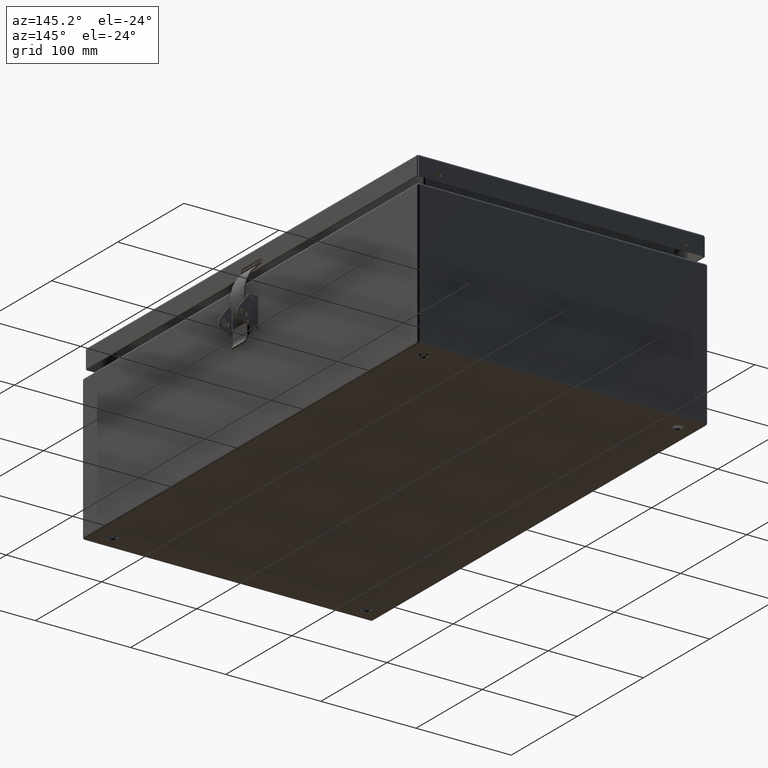
[diagram: clean part render]
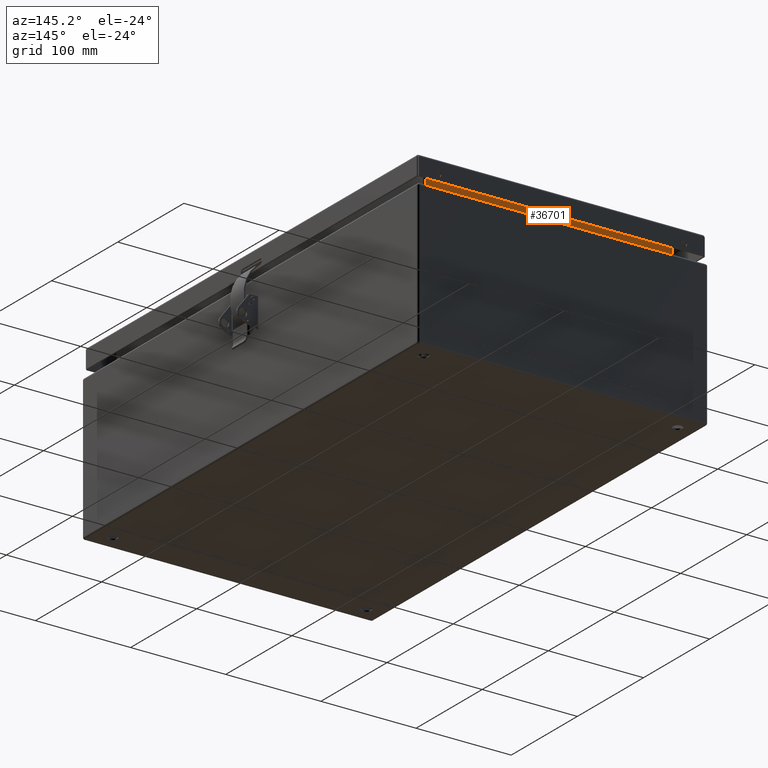
[diagram: same view with one face highlighted and labeled with its STEP entity id]
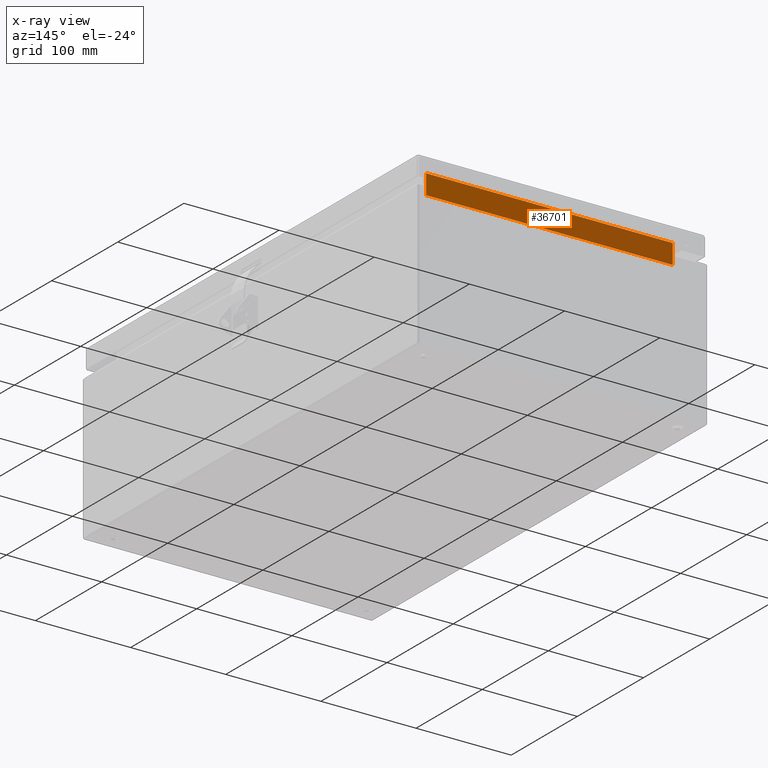
[diagram: x-ray of the same camera — body ghosted, the highlighted face saturated]
A machine part, auxiliary view. The second image highlights one B-rep face of the part: STEP entity #36701.
The next image is the same camera in x-ray: the body ghosted, the highlighted face saturated — about 0% of this face is hidden behind the body in this view.
In plain terms, the highlighted planar face has unit normal (-0, 1, 0).
Its self-contained STEP definition (entity closure, byte-faithful):
#3620=LINE('',#52560,#5822);
#3623=LINE('',#52578,#5825);
#3669=LINE('',#52729,#5871);
#3670=LINE('',#52731,#5872);
#5822=VECTOR('',#43376,0.393700787401575);
#5825=VECTOR('',#43395,0.393700787401575);
#5871=VECTOR('',#43563,0.393700787401575);
#5872=VECTOR('',#43566,0.393700787401575);
#8747=FACE_OUTER_BOUND('',#11049,.T.);
#11049=EDGE_LOOP('',(#24774,#24775,#24776,#24777));
#14977=VERTEX_POINT('',#52550);
#14981=VERTEX_POINT('',#52559);
#14985=VERTEX_POINT('',#52568);
#14988=VERTEX_POINT('',#52576);
#18682=EDGE_CURVE('',#14977,#14981,#3620,.T.);
#18691=EDGE_CURVE('',#14988,#14985,#3623,.T.);
#18770=EDGE_CURVE('',#14988,#14981,#3669,.T.);
#18771=EDGE_CURVE('',#14985,#14977,#3670,.T.);
#24774=ORIENTED_EDGE('',*,*,#18691,.F.);
#24775=ORIENTED_EDGE('',*,*,#18770,.T.);
#24776=ORIENTED_EDGE('',*,*,#18682,.F.);
#24777=ORIENTED_EDGE('',*,*,#18771,.F.);
#35957=PLANE('',#39839);
#36701=ADVANCED_FACE('',(#8747),#35957,.T.);
#39839=AXIS2_PLACEMENT_3D('',#52732,#43567,#43568);
#43376=DIRECTION('',(5.52737501055604E-15,2.0919491445597E-14,-1.));
#43395=DIRECTION('',(5.52737501055604E-15,-2.0919491445597E-14,1.));
#43563=DIRECTION('',(-1.,-1.17709516563078E-17,5.88547582815382E-18));
#43566=DIRECTION('',(-1.,0.,0.));
#43567=DIRECTION('center_axis',(-1.17709516563077E-17,1.,2.0919491445597E-14));
#43568=DIRECTION('ref_axis',(1.,1.17709516563078E-17,-5.88547582815383E-18));
#52550=CARTESIAN_POINT('',(-5.10285826771653,9.18685826771653,6.84725196850394));
#52559=CARTESIAN_POINT('',(-5.10285826771653,9.18685826771653,6.03100000000001));
#52560=CARTESIAN_POINT('',(-5.10285826771657,9.18685826771655,6.44429081038872));
#52568=CARTESIAN_POINT('',(5.10285826771653,9.18685826771645,6.84725196850403));
#52576=CARTESIAN_POINT('',(5.10285826771653,9.18685826771656,6.03100000000001));
#52578=CARTESIAN_POINT('',(5.10285826771657,9.18685826771655,6.44429081038872));
#52729=CARTESIAN_POINT('',(-1.74702611376674E-16,9.18685826771656,6.03100000000001));
#52731=CARTESIAN_POINT('',(-5.13107438275127,9.18685826771645,6.84725196850403));
#52732=CARTESIAN_POINT('Origin',(-3.47061680363812E-16,9.18685826771655,
6.44429081038863));